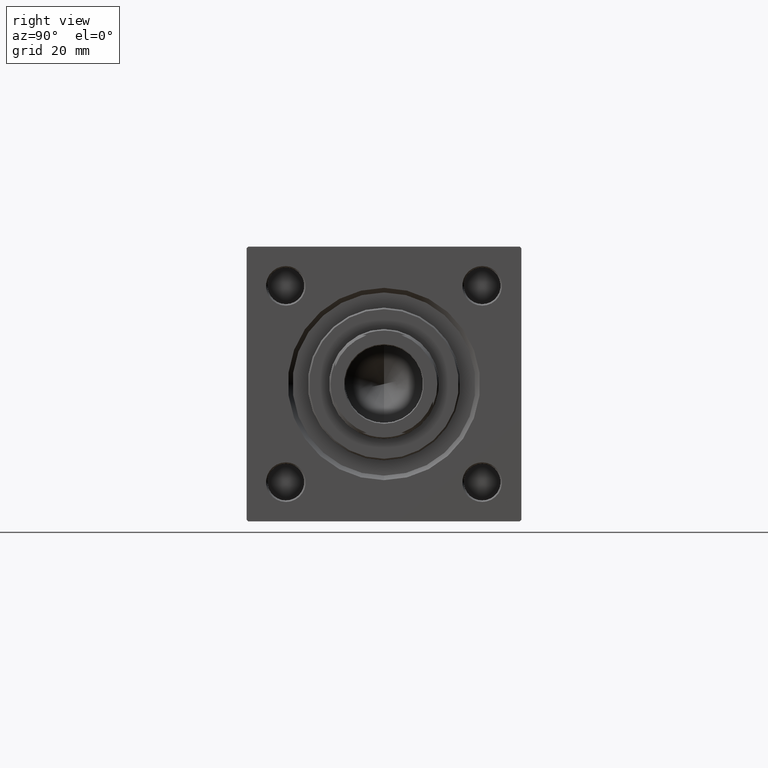
[diagram: clean part render]
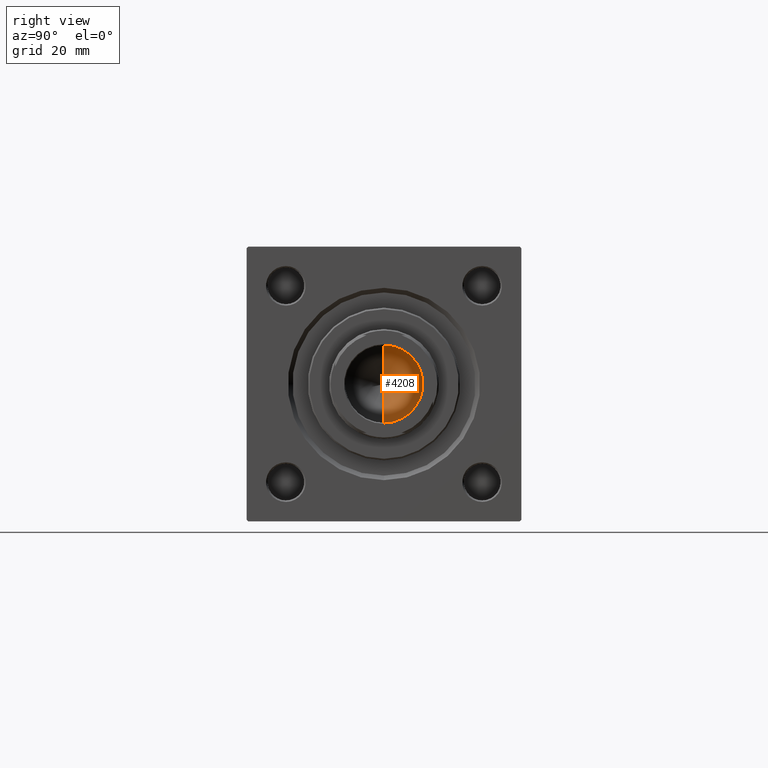
[diagram: same view with one face highlighted and labeled with its STEP entity id]
A machine part, right view. The second image highlights one B-rep face of the part: STEP entity #4208.
In plain terms, the highlighted conical surface has half-angle 59 deg.
Its self-contained STEP definition (entity closure, byte-faithful):
#1705 = CARTESIAN_POINT ( 'NONE',  ( -12.74999999999999112, 1.561424668912874125E-15, 105.0000000000000284 ) ) ;
#4195 = AXIS2_PLACEMENT_3D ( 'NONE', #20897, #49060, #17583 ) ;
#4208 = ADVANCED_FACE ( 'NONE', ( #12614 ), #48571, .F. ) ;
#4339 = EDGE_CURVE ( 'NONE', #5346, #43820, #7439, .T. ) ;
#5346 = VERTEX_POINT ( 'NONE', #38725 ) ;
#6257 = CARTESIAN_POINT ( 'NONE',  ( 12.74999999999999112, 0.000000000000000000, 105.0000000000000284 ) ) ;
#7439 = LINE ( 'NONE', #6257, #16924 ) ;
#9039 = CIRCLE ( 'NONE', #4195, 12.74999999999999112 ) ;
#11082 = EDGE_LOOP ( 'NONE', ( #18465, #29033, #12640 ) ) ;
#12614 = FACE_OUTER_BOUND ( 'NONE', #11082, .T. ) ;
#12640 = ORIENTED_EDGE ( 'NONE', *, *, #36055, .T. ) ;
#13610 = LINE ( 'NONE', #1705, #22058 ) ;
#15280 = AXIS2_PLACEMENT_3D ( 'NONE', #31925, #35486, #24567 ) ;
#16924 = VECTOR ( 'NONE', #17677, 1000.000000000000000 ) ;
#17583 = DIRECTION ( 'NONE',  ( 1.000000000000000000, 0.000000000000000000, 0.000000000000000000 ) ) ;
#17677 = DIRECTION ( 'NONE',  ( 0.8571673007021117785, 0.000000000000000000, 0.5150380749100550437 ) ) ;
#18465 = ORIENTED_EDGE ( 'NONE', *, *, #4339, .F. ) ;
#20897 = CARTESIAN_POINT ( 'NONE',  ( 0.000000000000000000, 0.000000000000000000, 105.0000000000000284 ) ) ;
#22058 = VECTOR ( 'NONE', #24801, 1000.000000000000000 ) ;
#24567 = DIRECTION ( 'NONE',  ( 1.000000000000000000, 0.000000000000000000, 0.000000000000000000 ) ) ;
#24801 = DIRECTION ( 'NONE',  ( -0.8571673007021117785, 1.049727191138617956E-16, 0.5150380749100550437 ) ) ;
#29033 = ORIENTED_EDGE ( 'NONE', *, *, #33468, .T. ) ;
#29945 = VERTEX_POINT ( 'NONE', #46141 ) ;
#31925 = CARTESIAN_POINT ( 'NONE',  ( 0.000000000000000000, 0.000000000000000000, 105.0000000000000284 ) ) ;
#33468 = EDGE_CURVE ( 'NONE', #5346, #29945, #13610, .T. ) ;
#35486 = DIRECTION ( 'NONE',  ( -0.000000000000000000, -0.000000000000000000, 1.000000000000000000 ) ) ;
#36055 = EDGE_CURVE ( 'NONE', #29945, #43820, #9039, .T. ) ;
#38725 = CARTESIAN_POINT ( 'NONE',  ( -1.323906893019387300E-14, 0.000000000000000000, 97.33902710739862130 ) ) ;
#40319 = CARTESIAN_POINT ( 'NONE',  ( 12.74999999999999112, 0.000000000000000000, 105.0000000000000284 ) ) ;
#43820 = VERTEX_POINT ( 'NONE', #40319 ) ;
#46141 = CARTESIAN_POINT ( 'NONE',  ( -12.74999999999999112, 1.561424668912874125E-15, 105.0000000000000284 ) ) ;
#48571 = CONICAL_SURFACE ( 'NONE', #15280, 12.74999999999999112, 1.029744258676653423 ) ;
#49060 = DIRECTION ( 'NONE',  ( -0.000000000000000000, -0.000000000000000000, 1.000000000000000000 ) ) ;